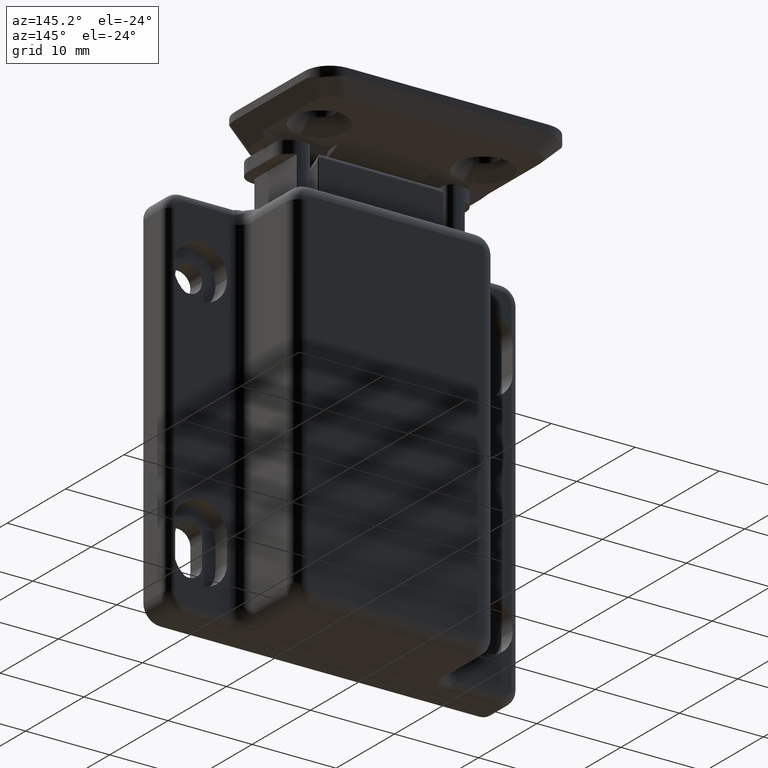
[diagram: clean part render]
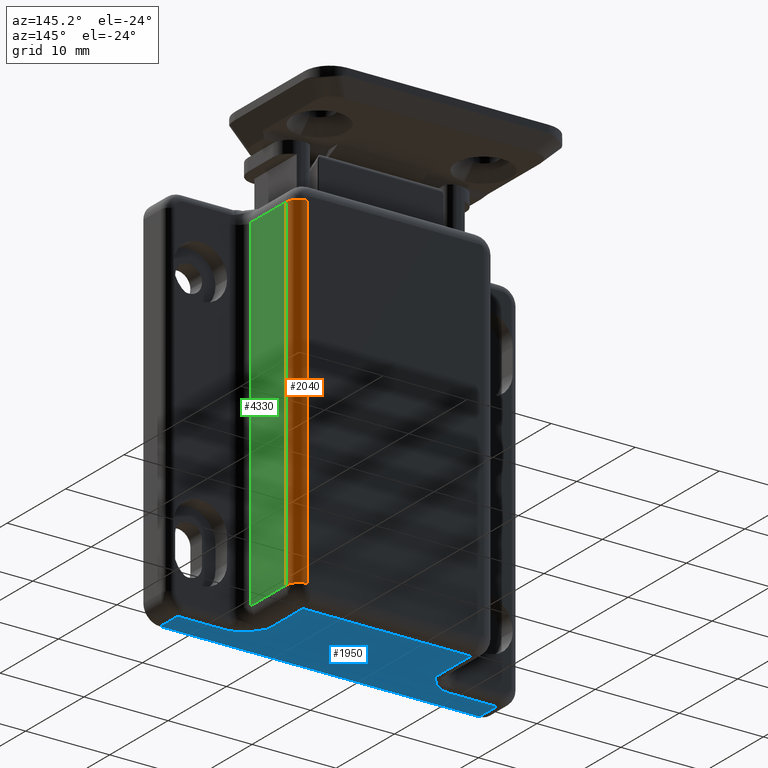
[diagram: same view with three faces highlighted in distinct colors, each labeled with its STEP entity id]
A machine part, auxiliary view with three faces highlighted in distinct colors.
Their STEP definitions:

[orange] entity #2040 — the highlighted cylindrical surface (edge-blend (fillet) strip) has radius 1.5 mm, axis along (0, -0, 1).
#65 = LINE ( 'NONE', #2114, #6393 ) ;
#385 = ORIENTED_EDGE ( 'NONE', *, *, #7376, .F. ) ;
#437 = VERTEX_POINT ( 'NONE', #7271 ) ;
#568 = DIRECTION ( 'NONE',  ( 0.0000000000000000000, 0.0000000000000000000, -1.000000000000000000 ) ) ;
#578 = DIRECTION ( 'NONE',  ( 0.0000000000000000000, 0.0000000000000000000, -1.000000000000000000 ) ) ;
#747 = AXIS2_PLACEMENT_3D ( 'NONE', #7657, #4153, #578 ) ;
#922 = ORIENTED_EDGE ( 'NONE', *, *, #6362, .F. ) ;
#938 = VERTEX_POINT ( 'NONE', #7496 ) ;
#1703 = CARTESIAN_POINT ( 'NONE',  ( 10.50000000000000000, -2.000000000000087900, 13.00000000000000000 ) ) ;
#1797 = CARTESIAN_POINT ( 'NONE',  ( 10.50000000000000000, 4.999999998062110200E-005, 11.50000000000000000 ) ) ;
#1975 = EDGE_CURVE ( 'NONE', #938, #6132, #3390, .T. ) ;
#2040 = ADVANCED_FACE ( 'NONE', ( #3197 ), #4424, .T. ) ;
#2114 = CARTESIAN_POINT ( 'NONE',  ( 12.00000000000000000, 4.999999998062110200E-005, 11.50000000000000000 ) ) ;
#2338 = EDGE_CURVE ( 'NONE', #2788, #437, #6892, .T. ) ;
#2397 = DIRECTION ( 'NONE',  ( 0.0000000000000000000, -1.000000000000000000, 0.0000000000000000000 ) ) ;
#2525 = CARTESIAN_POINT ( 'NONE',  ( 10.50000000000000000, 0.0000000000000000000, 13.00000000000000000 ) ) ;
#2586 = VECTOR ( 'NONE', #6663, 1000.000000000000000 ) ;
#2788 = VERTEX_POINT ( 'NONE', #4581 ) ;
#3197 = FACE_OUTER_BOUND ( 'NONE', #6464, .T. ) ;
#3390 = CIRCLE ( 'NONE', #747, 1.499999999999999600 ) ;
#3550 = AXIS2_PLACEMENT_3D ( 'NONE', #1797, #2397, #6531 ) ;
#4000 = LINE ( 'NONE', #2525, #2586 ) ;
#4146 = DIRECTION ( 'NONE',  ( 0.0000000000000000000, -1.000000000000000000, 0.0000000000000000000 ) ) ;
#4153 = DIRECTION ( 'NONE',  ( 0.0000000000000000000, -1.000000000000000000, 0.0000000000000000000 ) ) ;
#4245 = ORIENTED_EDGE ( 'NONE', *, *, #2338, .F. ) ;
#4424 = CYLINDRICAL_SURFACE ( 'NONE', #3550, 1.499999999999999600 ) ;
#4581 = CARTESIAN_POINT ( 'NONE',  ( 12.00000000000000000, -42.99998499999996000, 11.50000000000000000 ) ) ;
#5243 = ORIENTED_EDGE ( 'NONE', *, *, #1975, .T. ) ;
#5681 = DIRECTION ( 'NONE',  ( 0.0000000000000000000, -1.000000000000000000, 0.0000000000000000000 ) ) ;
#5793 = AXIS2_PLACEMENT_3D ( 'NONE', #7646, #4146, #568 ) ;
#6132 = VERTEX_POINT ( 'NONE', #1703 ) ;
#6362 = EDGE_CURVE ( 'NONE', #437, #6132, #4000, .T. ) ;
#6393 = VECTOR ( 'NONE', #5681, 1000.000000000000000 ) ;
#6464 = EDGE_LOOP ( 'NONE', ( #5243, #922, #4245, #385 ) ) ;
#6531 = DIRECTION ( 'NONE',  ( 0.0000000000000000000, 0.0000000000000000000, -1.000000000000000000 ) ) ;
#6663 = DIRECTION ( 'NONE',  ( -0.0000000000000000000, 1.000000000000000000, -0.0000000000000000000 ) ) ;
#6892 = CIRCLE ( 'NONE', #5793, 1.499999999999999600 ) ;
#7271 = CARTESIAN_POINT ( 'NONE',  ( 10.50000000000000000, -42.99998499999996000, 13.00000000000000000 ) ) ;
#7376 = EDGE_CURVE ( 'NONE', #938, #2788, #65, .T. ) ;
#7496 = CARTESIAN_POINT ( 'NONE',  ( 12.00000000000000000, -2.000000000000087900, 11.50000000000000000 ) ) ;
#7646 = CARTESIAN_POINT ( 'NONE',  ( 10.50000000000000000, -42.99998499999996000, 11.50000000000000000 ) ) ;
#7657 = CARTESIAN_POINT ( 'NONE',  ( 10.50000000000000000, -2.000000000000087900, 11.50000000000000000 ) ) ;

[blue] entity #1950 — the highlighted planar face has unit normal (-0, -0, 1).
#91 = CARTESIAN_POINT ( 'NONE',  ( -13.35410196624955000, -1.197825141737083800E-014, 3.000000000000423200 ) ) ;
#118 = CARTESIAN_POINT ( 'NONE',  ( -12.45211913875182400, -1.484234959993413000E-014, 3.143777679477117300 ) ) ;
#134 = CARTESIAN_POINT ( 'NONE',  ( -18.99999999999999600, 6.426753582879798200E-015, 3.000000000000423200 ) ) ;
#174 = ORIENTED_EDGE ( 'NONE', *, *, #3435, .T. ) ;
#187 = CARTESIAN_POINT ( 'NONE',  ( -9.999999999999991100, -2.291225396065909800E-014, 11.50000000000000000 ) ) ;
#235 = CARTESIAN_POINT ( 'NONE',  ( 10.39235325399007200, -8.948769687616582400E-014, 4.880119811054054700 ) ) ;
#256 = DIRECTION ( 'NONE',  ( -0.0000000000000000000, -0.0000000000000000000, -1.000000000000000000 ) ) ;
#520 = EDGE_CURVE ( 'NONE', #2759, #7635, #3650, .T. ) ;
#524 = ORIENTED_EDGE ( 'NONE', *, *, #4431, .T. ) ;
#547 = CARTESIAN_POINT ( 'NONE',  ( -20.18694510414995600, 6.938893903907228400E-015, 0.0000000000000000000 ) ) ;
#630 = CARTESIAN_POINT ( 'NONE',  ( -13.35410196624955000, -1.197825141737083800E-014, 3.000000000000423200 ) ) ;
#717 = CARTESIAN_POINT ( 'NONE',  ( -11.95027971826503300, -1.662285393135512300E-014, 3.363944471102245700 ) ) ;
#852 = LINE ( 'NONE', #4793, #5407 ) ;
#975 = LINE ( 'NONE', #2749, #1150 ) ;
#982 = EDGE_CURVE ( 'NONE', #7295, #2743, #975, .T. ) ;
#1150 = VECTOR ( 'NONE', #1413, 1000.000000000000000 ) ;
#1294 = CARTESIAN_POINT ( 'NONE',  ( 11.07422472772863200, -9.168724175031613600E-014, 4.021104486997349300 ) ) ;
#1319 = CARTESIAN_POINT ( 'NONE',  ( -11.48999712557277400, -1.797962237787264500E-014, 3.666685427245807800 ) ) ;
#1343 = CARTESIAN_POINT ( 'NONE',  ( 11.95029540946804200, -9.439944393792907200E-014, 3.363936035232477600 ) ) ;
#1413 = DIRECTION ( 'NONE',  ( 1.000000000000000000, -3.259889727059875400E-015, -0.0000000000000000000 ) ) ;
#1461 = DIRECTION ( 'NONE',  ( 0.0000000000000000000, 0.0000000000000000000, -1.000000000000000000 ) ) ;
#1665 = LINE ( 'NONE', #547, #4678 ) ;
#1670 = ORIENTED_EDGE ( 'NONE', *, *, #982, .T. ) ;
#1814 = VERTEX_POINT ( 'NONE', #5742 ) ;
#1860 = CARTESIAN_POINT ( 'NONE',  ( 13.16941875587998300, -9.844200414490064700E-014, 3.000000000000423700 ) ) ;
#1902 = CARTESIAN_POINT ( 'NONE',  ( -10.83278902022995600, -2.009875470409654300E-014, 4.293721536968244700 ) ) ;
#1916 = EDGE_CURVE ( 'NONE', #6084, #6241, #2538, .T. ) ;
#1950 = ADVANCED_FACE ( 'NONE', ( #5180 ), #5304, .F. ) ;
#2321 = VECTOR ( 'NONE', #1461, 1000.000000000000000 ) ;
#2327 = CARTESIAN_POINT ( 'NONE',  ( -1.848892746611746400E-028, -5.551115123125782700E-014, 0.0000000000000000000 ) ) ;
#2511 = CARTESIAN_POINT ( 'NONE',  ( -10.19493435040007500, -2.234962157037239400E-014, 5.191783270511654900 ) ) ;
#2538 = LINE ( 'NONE', #7011, #3748 ) ;
#2601 = CARTESIAN_POINT ( 'NONE',  ( 12.45212985738320400, -9.617994728876913900E-014, 3.143774216783183500 ) ) ;
#2695 = CARTESIAN_POINT ( 'NONE',  ( -9.999999999999991100, -2.291225396065909800E-014, 0.0000000000000000000 ) ) ;
#2743 = VERTEX_POINT ( 'NONE', #6895 ) ;
#2749 = CARTESIAN_POINT ( 'NONE',  ( -1.848892746611746400E-028, -5.551115123125782700E-014, 11.50000000000000000 ) ) ;
#2759 = VERTEX_POINT ( 'NONE', #6875 ) ;
#2866 = CARTESIAN_POINT ( 'NONE',  ( -18.99999999999999600, 3.069583752304757500E-015, 0.0000000000000000000 ) ) ;
#2878 = DIRECTION ( 'NONE',  ( -0.0000000000000000000, -0.0000000000000000000, 1.000000000000000000 ) ) ;
#2880 = VECTOR ( 'NONE', #6242, 1000.000000000000000 ) ;
#2925 = DIRECTION ( 'NONE',  ( 1.000000000000000000, -3.259889727059875400E-015, 0.0000000000000000000 ) ) ;
#3244 = ORIENTED_EDGE ( 'NONE', *, *, #5822, .T. ) ;
#3408 = CARTESIAN_POINT ( 'NONE',  ( -9.999999999999991100, -2.291225396065909800E-014, 5.500000000000000000 ) ) ;
#3435 = EDGE_CURVE ( 'NONE', #6241, #4219, #7515, .T. ) ;
#3518 = DIRECTION ( 'NONE',  ( -1.000000000000000000, 3.259889727059875400E-015, -0.0000000000000000000 ) ) ;
#3573 = EDGE_CURVE ( 'NONE', #7635, #7421, #852, .T. ) ;
#3650 = B_SPLINE_CURVE_WITH_KNOTS ( 'NONE', 3,
 ( #5438, #4125, #235, #3741, #1294, #5009, #6601, #1343, #5985, #2601, #4350, #3770, #1860, #3799 ),
 .UNSPECIFIED., .F., .F.,
 ( 4, 2, 2, 2, 2, 2, 4 ),
 ( -9.999999999979121500E-006, 0.001089923357011304200, 0.002189846714022587700, 0.002739808392528228900, 0.003289770071033870200, 0.003839731749539511500, 0.004389693428045153200 ),
 .UNSPECIFIED. ) ;
#3676 = CARTESIAN_POINT ( 'NONE',  ( -12.62984654776750100, -1.424426949340921800E-014, 3.090101908104067300 ) ) ;
#3707 = CARTESIAN_POINT ( 'NONE',  ( 13.35410196624956600, -9.904405104514486500E-014, 3.000000000000423200 ) ) ;
#3741 = CARTESIAN_POINT ( 'NONE',  ( 10.83281224784422600, -9.092354462542210100E-014, 4.293694126383215300 ) ) ;
#3748 = VECTOR ( 'NONE', #2878, 1000.000000000000000 ) ;
#3770 = CARTESIAN_POINT ( 'NONE',  ( 12.98772941994724700, -9.794467031158612500E-014, 3.018621126367483600 ) ) ;
#3799 = CARTESIAN_POINT ( 'NONE',  ( 13.35410196624956600, -9.904405104514486500E-014, 3.000000000000423200 ) ) ;
#3918 = LINE ( 'NONE', #6781, #2321 ) ;
#3987 = ORIENTED_EDGE ( 'NONE', *, *, #7624, .T. ) ;
#4125 = CARTESIAN_POINT ( 'NONE',  ( 10.19597862159096600, -8.871715383714950600E-014, 5.190132141028411400 ) ) ;
#4219 = VERTEX_POINT ( 'NONE', #630 ) ;
#4282 = B_SPLINE_CURVE_WITH_KNOTS ( 'NONE', 3,
 ( #91, #4844, #7216, #3676, #118, #4292, #717, #4894, #1319, #5483, #1902, #6061, #2511, #6645 ),
 .UNSPECIFIED., .F., .F.,
 ( 4, 2, 2, 2, 2, 2, 4 ),
 ( 0.0000000000000000000, 0.0005470312101977219800, 0.001094062420395444000, 0.001641093630593165900, 0.002188124840790887900, 0.003282187261186335800, 0.004376249681581783700 ),
 .UNSPECIFIED. ) ;
#4292 = CARTESIAN_POINT ( 'NONE',  ( -12.11264676656266700, -1.594899209865419000E-014, 3.280802959743799100 ) ) ;
#4296 = ORIENTED_EDGE ( 'NONE', *, *, #1916, .T. ) ;
#4350 = CARTESIAN_POINT ( 'NONE',  ( 12.62985521485017900, -9.677803986681049600E-014, 3.090099741861574800 ) ) ;
#4383 = VECTOR ( 'NONE', #256, 1000.000000000000000 ) ;
#4431 = EDGE_CURVE ( 'NONE', #2743, #2759, #3918, .T. ) ;
#4536 = ORIENTED_EDGE ( 'NONE', *, *, #4862, .T. ) ;
#4678 = VECTOR ( 'NONE', #3518, 1000.000000000000000 ) ;
#4702 = DIRECTION ( 'NONE',  ( 1.000000000000000000, -3.259889727059875400E-015, 0.0000000000000000000 ) ) ;
#4793 = CARTESIAN_POINT ( 'NONE',  ( -1.848892746611746400E-028, -5.551115123125782700E-014, 3.000000000000423200 ) ) ;
#4844 = CARTESIAN_POINT ( 'NONE',  ( -13.16941650203806100, -1.258030566489114100E-014, 3.000000000000423200 ) ) ;
#4862 = EDGE_CURVE ( 'NONE', #6001, #7295, #6014, .T. ) ;
#4894 = CARTESIAN_POINT ( 'NONE',  ( -11.63889471054355900, -1.763793471918681700E-014, 3.556727487100331600 ) ) ;
#5009 = CARTESIAN_POINT ( 'NONE',  ( 11.49001660518622000, -9.304267742023506900E-014, 3.666670445885700200 ) ) ;
#5180 = FACE_OUTER_BOUND ( 'NONE', #5305, .T. ) ;
#5304 = PLANE ( 'NONE',  #7632 ) ;
#5305 = EDGE_LOOP ( 'NONE', ( #174, #3987, #4536, #1670, #524, #5735, #5945, #3244, #5372, #4296 ) ) ;
#5372 = ORIENTED_EDGE ( 'NONE', *, *, #5628, .T. ) ;
#5407 = VECTOR ( 'NONE', #7116, 1000.000000000000000 ) ;
#5438 = CARTESIAN_POINT ( 'NONE',  ( 10.00000000000000700, -8.811004850185661600E-014, 5.500000000000000000 ) ) ;
#5483 = CARTESIAN_POINT ( 'NONE',  ( -11.07420279612309600, -1.933506604101542600E-014, 4.021126429889696000 ) ) ;
#5628 = EDGE_CURVE ( 'NONE', #1814, #6084, #1665, .T. ) ;
#5735 = ORIENTED_EDGE ( 'NONE', *, *, #520, .T. ) ;
#5742 = CARTESIAN_POINT ( 'NONE',  ( 18.99999999999998900, -1.208062258759704400E-013, 0.0000000000000000000 ) ) ;
#5822 = EDGE_CURVE ( 'NONE', #7421, #1814, #7498, .T. ) ;
#5945 = ORIENTED_EDGE ( 'NONE', *, *, #3573, .T. ) ;
#5950 = VECTOR ( 'NONE', #4702, 1000.000000000000000 ) ;
#5985 = CARTESIAN_POINT ( 'NONE',  ( 12.11266090482652700, -9.507331593767386800E-014, 3.280796389216061600 ) ) ;
#6001 = VERTEX_POINT ( 'NONE', #3408 ) ;
#6014 = LINE ( 'NONE', #2695, #2880 ) ;
#6061 = CARTESIAN_POINT ( 'NONE',  ( -10.39232810422673100, -2.153460871934683400E-014, 4.880156810339648200 ) ) ;
#6084 = VERTEX_POINT ( 'NONE', #2866 ) ;
#6241 = VERTEX_POINT ( 'NONE', #134 ) ;
#6242 = DIRECTION ( 'NONE',  ( -0.0000000000000000000, -0.0000000000000000000, 1.000000000000000000 ) ) ;
#6462 = DIRECTION ( 'NONE',  ( -3.259889727059875400E-015, -1.000000000000000000, 0.0000000000000000000 ) ) ;
#6601 = CARTESIAN_POINT ( 'NONE',  ( 11.63891321977528800, -9.338437233656029600E-014, 3.556714749120832400 ) ) ;
#6645 = CARTESIAN_POINT ( 'NONE',  ( -9.999999999999991100, -2.291225396065909800E-014, 5.500000000000000000 ) ) ;
#6781 = CARTESIAN_POINT ( 'NONE',  ( 10.00000000000000700, -8.811004850185661600E-014, 0.0000000000000000000 ) ) ;
#6875 = CARTESIAN_POINT ( 'NONE',  ( 10.00000000000000700, -8.811004850185661600E-014, 5.500000000000000000 ) ) ;
#6877 = CARTESIAN_POINT ( 'NONE',  ( 19.00000000000000400, -1.174490560453954600E-013, 3.000000000000423200 ) ) ;
#6895 = CARTESIAN_POINT ( 'NONE',  ( 10.00000000000000700, -8.811004850185661600E-014, 11.50000000000000000 ) ) ;
#7011 = CARTESIAN_POINT ( 'NONE',  ( -18.99999999999999600, 6.426753582879798200E-015, 0.0000000000000000000 ) ) ;
#7021 = CARTESIAN_POINT ( 'NONE',  ( -12.87228132326900700, -1.354893358170848900E-014, 3.000000000000423200 ) ) ;
#7116 = DIRECTION ( 'NONE',  ( 1.000000000000000000, -3.259889727059875400E-015, 0.0000000000000000000 ) ) ;
#7216 = CARTESIAN_POINT ( 'NONE',  ( -12.98772498472798800, -1.307762525322549600E-014, 3.018621577078344200 ) ) ;
#7295 = VERTEX_POINT ( 'NONE', #187 ) ;
#7325 = CARTESIAN_POINT ( 'NONE',  ( 19.00000000000000400, -1.174490560453954600E-013, 0.0000000000000000000 ) ) ;
#7421 = VERTEX_POINT ( 'NONE', #6877 ) ;
#7498 = LINE ( 'NONE', #7325, #4383 ) ;
#7515 = LINE ( 'NONE', #7021, #5950 ) ;
#7624 = EDGE_CURVE ( 'NONE', #4219, #6001, #4282, .T. ) ;
#7632 = AXIS2_PLACEMENT_3D ( 'NONE', #2327, #6462, #2925 ) ;
#7635 = VERTEX_POINT ( 'NONE', #3707 ) ;

[green] entity #4330 — the highlighted planar face has unit normal (-1, 0, 0).
#65 = LINE ( 'NONE', #2114, #6393 ) ;
#82 = VERTEX_POINT ( 'NONE', #6108 ) ;
#307 = CARTESIAN_POINT ( 'NONE',  ( 12.00000000000000000, -2.000000000000087900, 5.500000000000000000 ) ) ;
#736 = DIRECTION ( 'NONE',  ( -1.000000000000000000, 0.0000000000000000000, 0.0000000000000000000 ) ) ;
#772 = CARTESIAN_POINT ( 'NONE',  ( 12.00000000000000000, -2.000000000000087900, 13.00000000000000000 ) ) ;
#938 = VERTEX_POINT ( 'NONE', #7496 ) ;
#1120 = EDGE_CURVE ( 'NONE', #5219, #82, #4618, .T. ) ;
#1863 = CARTESIAN_POINT ( 'NONE',  ( 12.00000000000000000, -42.99998499999996000, 5.500000000000000000 ) ) ;
#2114 = CARTESIAN_POINT ( 'NONE',  ( 12.00000000000000000, 4.999999998062110200E-005, 11.50000000000000000 ) ) ;
#2268 = DIRECTION ( 'NONE',  ( -0.0000000000000000000, 1.000000000000000000, -0.0000000000000000000 ) ) ;
#2334 = ORIENTED_EDGE ( 'NONE', *, *, #7376, .T. ) ;
#2421 = VECTOR ( 'NONE', #2957, 1000.000000000000000 ) ;
#2788 = VERTEX_POINT ( 'NONE', #4581 ) ;
#2957 = DIRECTION ( 'NONE',  ( 0.0000000000000000000, 0.0000000000000000000, -1.000000000000000000 ) ) ;
#3080 = CARTESIAN_POINT ( 'NONE',  ( 12.00000000000000000, 4.999999998062110200E-005, 13.00000000000000000 ) ) ;
#3182 = EDGE_CURVE ( 'NONE', #82, #938, #6589, .T. ) ;
#3375 = AXIS2_PLACEMENT_3D ( 'NONE', #3080, #736, #4912 ) ;
#3461 = VECTOR ( 'NONE', #4341, 1000.000000000000000 ) ;
#3466 = ORIENTED_EDGE ( 'NONE', *, *, #3182, .T. ) ;
#3540 = EDGE_CURVE ( 'NONE', #2788, #5219, #7140, .T. ) ;
#3565 = CARTESIAN_POINT ( 'NONE',  ( 12.00000000000000000, -42.99998499999996000, 13.00000000000000000 ) ) ;
#4308 = PLANE ( 'NONE',  #3375 ) ;
#4330 = ADVANCED_FACE ( 'NONE', ( #4492 ), #4308, .F. ) ;
#4341 = DIRECTION ( 'NONE',  ( -0.0000000000000000000, -0.0000000000000000000, 1.000000000000000000 ) ) ;
#4492 = FACE_OUTER_BOUND ( 'NONE', #5934, .T. ) ;
#4581 = CARTESIAN_POINT ( 'NONE',  ( 12.00000000000000000, -42.99998499999996000, 11.50000000000000000 ) ) ;
#4618 = LINE ( 'NONE', #307, #7536 ) ;
#4912 = DIRECTION ( 'NONE',  ( 0.0000000000000000000, 0.0000000000000000000, 1.000000000000000000 ) ) ;
#5219 = VERTEX_POINT ( 'NONE', #1863 ) ;
#5681 = DIRECTION ( 'NONE',  ( 0.0000000000000000000, -1.000000000000000000, 0.0000000000000000000 ) ) ;
#5934 = EDGE_LOOP ( 'NONE', ( #3466, #2334, #7287, #6535 ) ) ;
#6108 = CARTESIAN_POINT ( 'NONE',  ( 12.00000000000000000, -2.000000000000087900, 5.500000000000000000 ) ) ;
#6393 = VECTOR ( 'NONE', #5681, 1000.000000000000000 ) ;
#6535 = ORIENTED_EDGE ( 'NONE', *, *, #1120, .T. ) ;
#6589 = LINE ( 'NONE', #772, #3461 ) ;
#7140 = LINE ( 'NONE', #3565, #2421 ) ;
#7287 = ORIENTED_EDGE ( 'NONE', *, *, #3540, .T. ) ;
#7376 = EDGE_CURVE ( 'NONE', #938, #2788, #65, .T. ) ;
#7496 = CARTESIAN_POINT ( 'NONE',  ( 12.00000000000000000, -2.000000000000087900, 11.50000000000000000 ) ) ;
#7536 = VECTOR ( 'NONE', #2268, 1000.000000000000000 ) ;